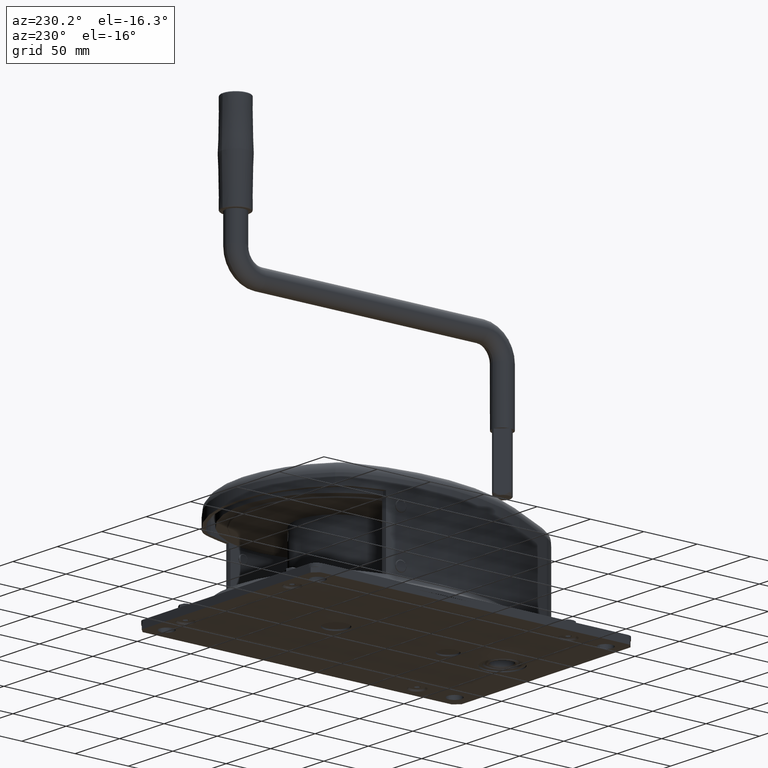
[diagram: clean part render]
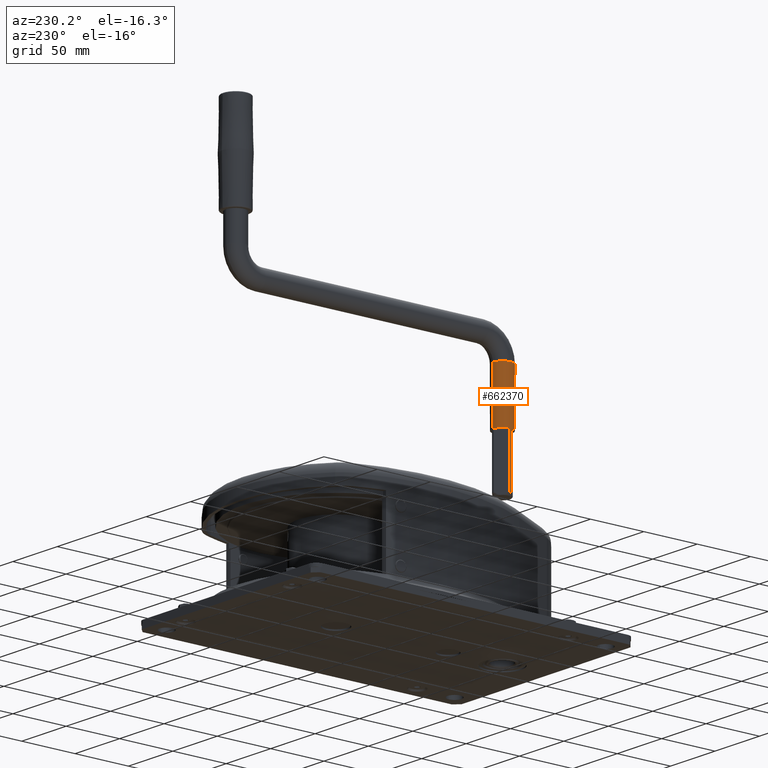
[diagram: same view with one face highlighted and labeled with its STEP entity id]
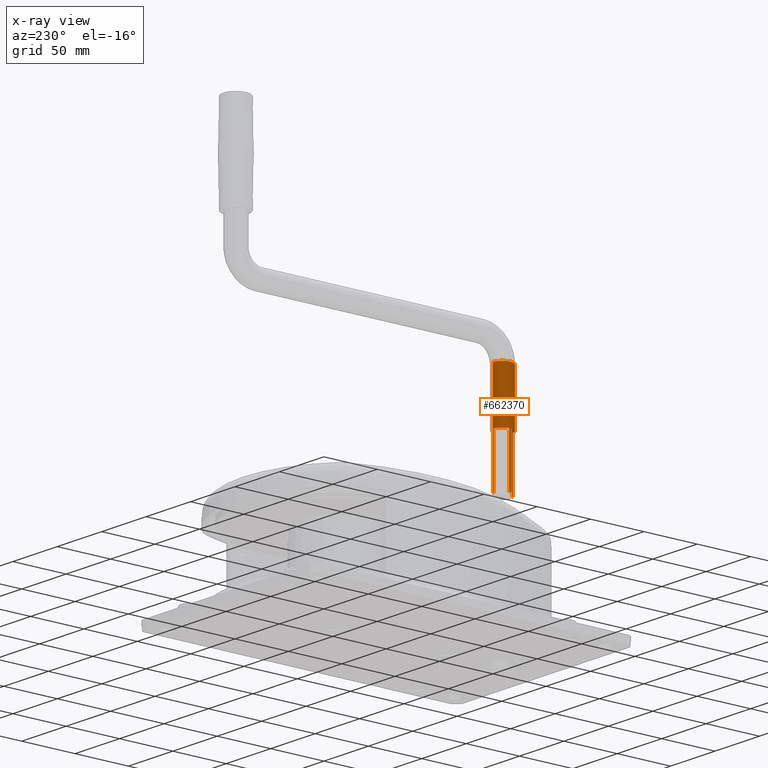
[diagram: x-ray of the same camera — body ghosted, the highlighted face saturated]
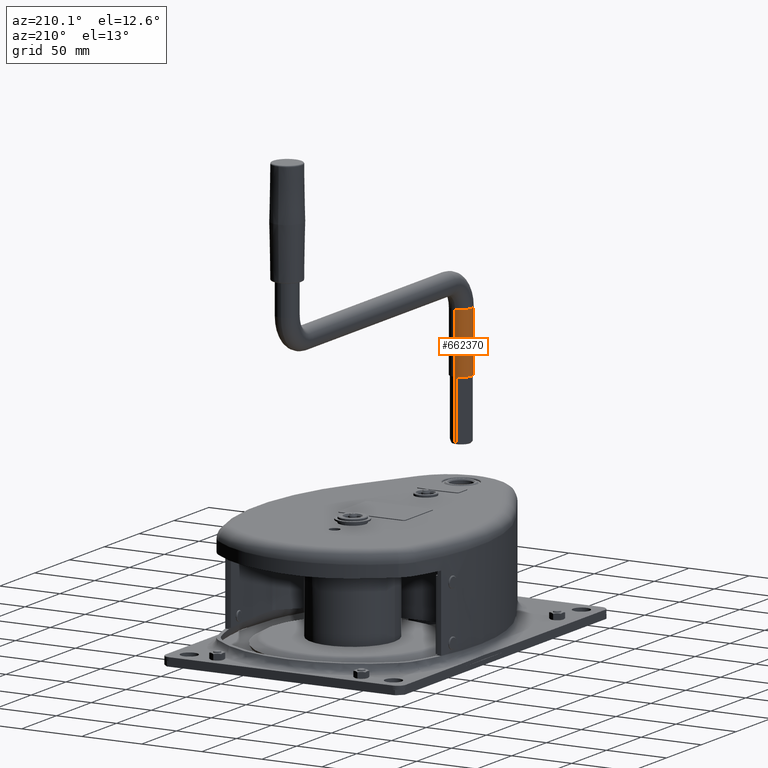
[diagram: same view with one face highlighted and labeled with its STEP entity id]
A machine part, auxiliary view. The second image highlights one B-rep face of the part: STEP entity #662370.
The next image is the same camera in x-ray: the body ghosted, the highlighted face saturated — about 0% of this face is hidden behind the body in this view.
A second angle (auxiliary view) of the same face is appended — the face is thin or edge-on in the first view.
In plain terms, the highlighted cylindrical surface (edge-blend (fillet) strip) has radius 9 mm, axis along (0, 0, 1).
Its self-contained STEP definition (entity closure, byte-faithful):
#661430=CARTESIAN_POINT('',(0.,0.,0.));
#661440=DIRECTION('',(1.,0.,0.));
#661450=DIRECTION('',(0.,1.,0.));
#661460=AXIS2_PLACEMENT_3D('',#661430,#661440,#661450);
#661470=CYLINDRICAL_SURFACE('',#661460,9.);
#661480=CARTESIAN_POINT('',(0.,9.,0.));
#661490=DIRECTION('',(1.,0.,0.));
#661500=VECTOR('',#661490,1.);
#661510=LINE('',#661480,#661500);
#661520=CARTESIAN_POINT('',(2.,9.,0.));
#661530=VERTEX_POINT('',#661520);
#661540=CARTESIAN_POINT('',(100.,9.,0.));
#661550=VERTEX_POINT('',#661540);
#661560=EDGE_CURVE('',#661530,#661550,#661510,.T.);
#661570=ORIENTED_EDGE('',*,*,#661560,.T.);
#661580=CARTESIAN_POINT('',(2.,0.,0.));
#661590=DIRECTION('',(1.,0.,0.));
#661600=DIRECTION('',(0.,1.,0.));
#661610=AXIS2_PLACEMENT_3D('',#661580,#661590,#661600);
#661620=CIRCLE('',#661610,9.);
#661630=CARTESIAN_POINT('',(2.,8.94974746830583,-0.949747468305837));
#661640=VERTEX_POINT('',#661630);
#661650=EDGE_CURVE('',#661640,#661530,#661620,.T.);
#661660=ORIENTED_EDGE('',*,*,#661650,.T.);
#661670=CARTESIAN_POINT('',(0.,8.94974746830583,-0.949747468305837));
#661680=DIRECTION('',(1.,0.,0.));
#661690=VECTOR('',#661680,1.);
#661700=LINE('',#661670,#661690);
#661710=CARTESIAN_POINT('',(50.,8.94974746830583,-0.949747468305837));
#661720=VERTEX_POINT('',#661710);
#661730=EDGE_CURVE('',#661640,#661720,#661700,.T.);
#661740=ORIENTED_EDGE('',*,*,#661730,.F.);
#661750=CARTESIAN_POINT('',(50.,0.,0.));
#661760=DIRECTION('',(1.,0.,0.));
#661770=DIRECTION('',(0.,1.,0.));
#661780=AXIS2_PLACEMENT_3D('',#661750,#661760,#661770);
#661790=CIRCLE('',#661780,9.);
#661800=CARTESIAN_POINT('',(50.,0.949747468305825,-8.94974746830583));
#661810=VERTEX_POINT('',#661800);
#661820=EDGE_CURVE('',#661810,#661720,#661790,.T.);
#661830=ORIENTED_EDGE('',*,*,#661820,.T.);
#661840=CARTESIAN_POINT('',(0.,0.949747468305825,-8.94974746830583));
#661850=DIRECTION('',(1.,0.,0.));
#661860=VECTOR('',#661850,1.);
#661870=LINE('',#661840,#661860);
#661880=CARTESIAN_POINT('',(2.,0.949747468305825,-8.94974746830583));
#661890=VERTEX_POINT('',#661880);
#661900=EDGE_CURVE('',#661890,#661810,#661870,.T.);
#661910=ORIENTED_EDGE('',*,*,#661900,.T.);
#661920=CARTESIAN_POINT('',(2.,-0.949747468305836,-8.94974746830583));
#661930=VERTEX_POINT('',#661920);
#661940=EDGE_CURVE('',#661930,#661890,#661620,.T.);
#661950=ORIENTED_EDGE('',*,*,#661940,.T.);
#661960=CARTESIAN_POINT('',(0.,-0.949747468305836,-8.94974746830583));
#661970=DIRECTION('',(1.,0.,0.));
#661980=VECTOR('',#661970,1.);
#661990=LINE('',#661960,#661980);
#662000=CARTESIAN_POINT('',(50.,-0.949747468305836,-8.94974746830583));
#662010=VERTEX_POINT('',#662000);
#662020=EDGE_CURVE('',#661930,#662010,#661990,.T.);
#662030=ORIENTED_EDGE('',*,*,#662020,.F.);
#662040=CARTESIAN_POINT('',(50.,-8.94974746830583,-0.949747468305826));
#662050=VERTEX_POINT('',#662040);
#662060=EDGE_CURVE('',#662050,#662010,#661790,.T.);
#662070=ORIENTED_EDGE('',*,*,#662060,.T.);
#662080=CARTESIAN_POINT('',(0.,-8.94974746830583,-0.949747468305826));
#662090=DIRECTION('',(1.,0.,0.));
#662100=VECTOR('',#662090,1.);
#662110=LINE('',#662080,#662100);
#662120=CARTESIAN_POINT('',(2.,-8.94974746830583,-0.949747468305826));
#662130=VERTEX_POINT('',#662120);
#662140=EDGE_CURVE('',#662130,#662050,#662110,.T.);
#662150=ORIENTED_EDGE('',*,*,#662140,.T.);
#662160=CARTESIAN_POINT('',(2.,-9.,1.10218211923262E-15));
#662170=VERTEX_POINT('',#662160);
#662180=EDGE_CURVE('',#662170,#662130,#661620,.T.);
#662190=ORIENTED_EDGE('',*,*,#662180,.T.);
#662200=CARTESIAN_POINT('',(0.,-9.,1.10218211923262E-15));
#662210=DIRECTION('',(1.,0.,0.));
#662220=VECTOR('',#662210,1.);
#662230=LINE('',#662200,#662220);
#662240=CARTESIAN_POINT('',(100.,-9.,1.10218211923262E-15));
#662250=VERTEX_POINT('',#662240);
#662260=EDGE_CURVE('',#662170,#662250,#662230,.T.);
#662270=ORIENTED_EDGE('',*,*,#662260,.F.);
#662280=CARTESIAN_POINT('',(100.,0.,0.));
#662290=DIRECTION('',(1.,0.,0.));
#662300=DIRECTION('',(0.,1.,0.));
#662310=AXIS2_PLACEMENT_3D('',#662280,#662290,#662300);
#662320=CIRCLE('',#662310,9.);
#662330=EDGE_CURVE('',#662250,#661550,#662320,.T.);
#662340=ORIENTED_EDGE('',*,*,#662330,.F.);
#662350=EDGE_LOOP('',(#662340,#662270,#662190,#662150,#662070,#662030,
#661950,#661910,#661830,#661740,#661660,#661570));
#662360=FACE_OUTER_BOUND('',#662350,.T.);
#662370=ADVANCED_FACE('',(#662360),#661470,.T.);